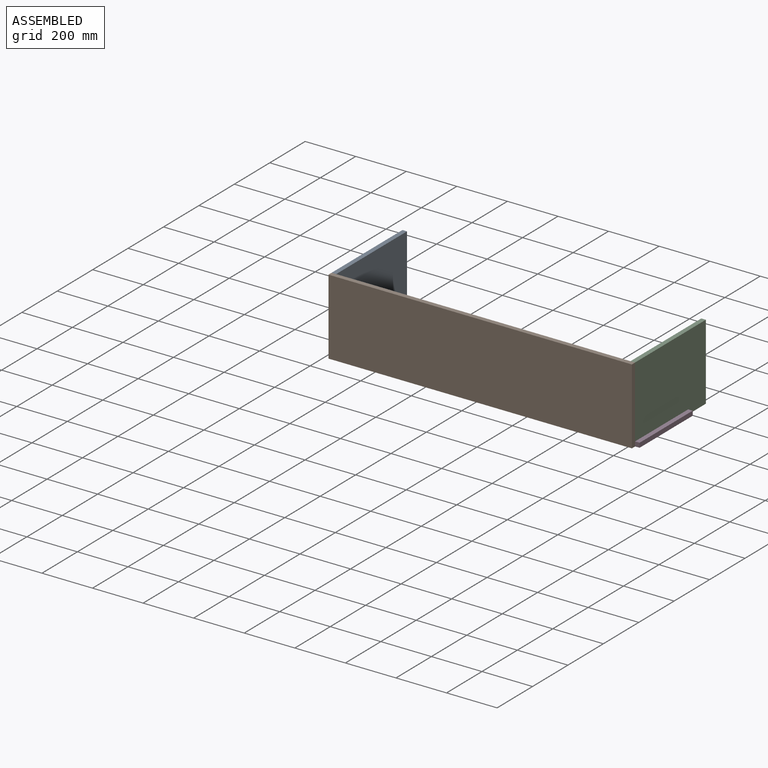
[diagram: assembled view]
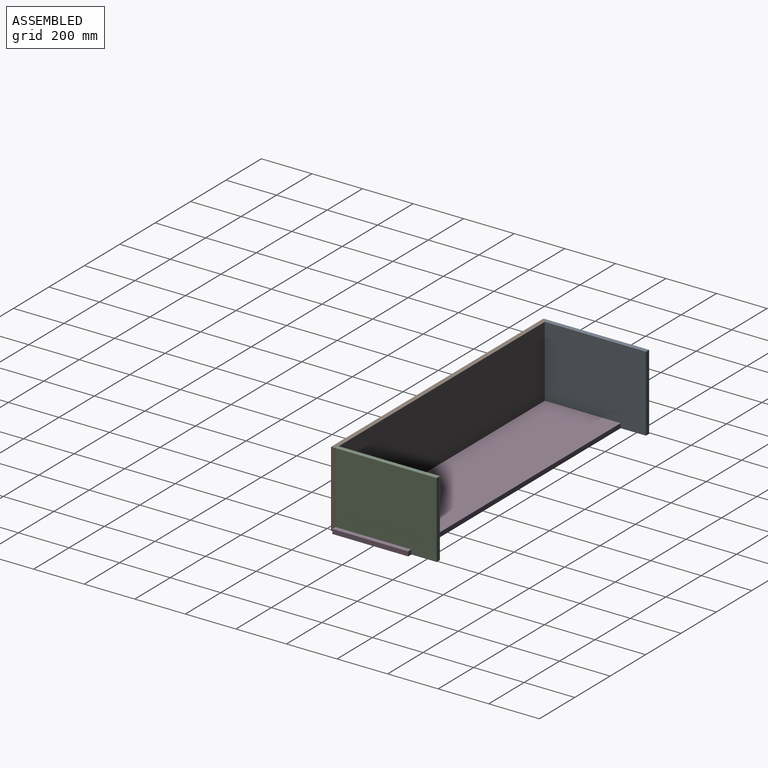
[diagram: assembled view, second angle]
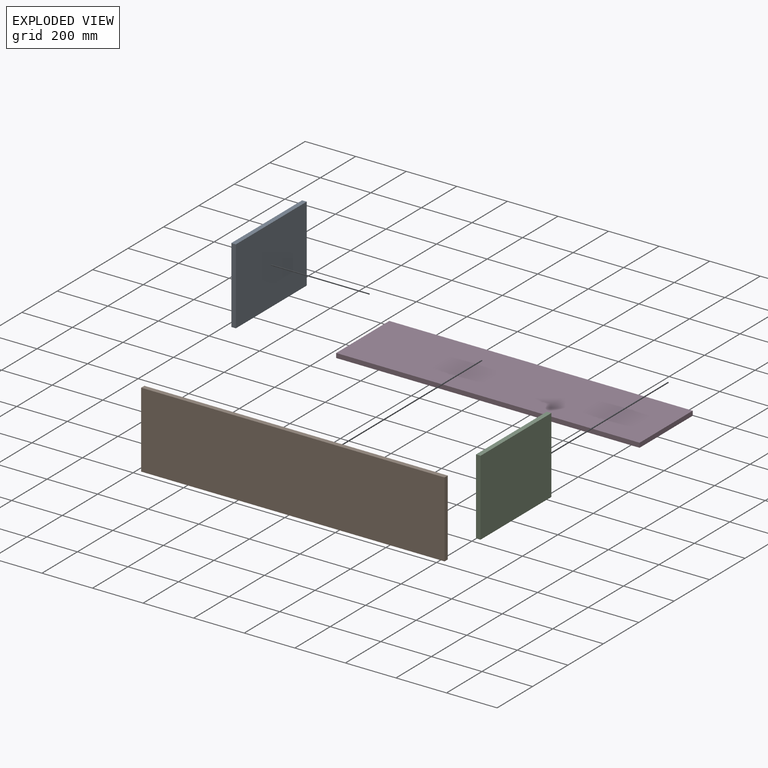
[diagram: exploded view]
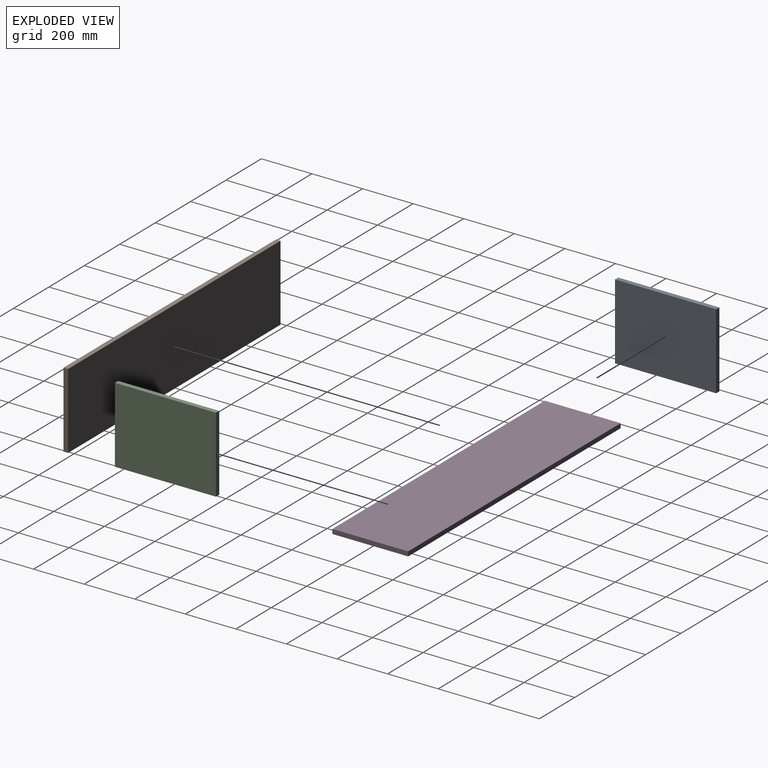
[diagram: exploded view, second angle]
ASSEMBLY  parts=4 mates=3
PART A: 6 faces, bbox 400x18x300 mm
  f0: plane 300x18mm, normal (-1,0,0), area 5400mm2, adj f1,f3,f4,f5
  f1: plane 400x18mm, normal (0,0,-1), area 7200mm2, adj f0,f2,f4,f5
  f2: plane 300x18mm, normal (1,0,0), area 5400mm2, adj f1,f3,f4,f5
  f3: plane 400x18mm, normal (0,0,1), area 7200mm2, adj f0,f2,f4,f5
  f4: plane 400x300mm, normal (0,-1,0), area 120000mm2, adj f0,f1,f2,f3
  f5: plane 400x300mm, normal (0,1,0), area 120000mm2, adj f0,f1,f2,f3
PART B: 6 faces, bbox 1200x18x300 mm
  f0: plane 300x18mm, normal (-1,0,0), area 5400mm2, adj f1,f3,f4,f5
  f1: plane 1200x18mm, normal (0,0,-1), area 21600mm2, adj f0,f2,f4,f5
  f2: plane 300x18mm, normal (1,0,0), area 5400mm2, adj f1,f3,f4,f5
  f3: plane 1200x18mm, normal (0,0,1), area 21600mm2, adj f0,f2,f4,f5
  f4: plane 1200x300mm, normal (0,-1,0), area 360000mm2, adj f0,f1,f2,f3
  f5: plane 1200x300mm, normal (0,1,0), area 360000mm2, adj f0,f1,f2,f3
PART C: same geometry as A
PART D: same geometry as B
PLACE A rot(axis=(0,0,-1),90deg) t=(1059.22,104.8,-887.88)mm
PLACE B t=(1647.31,-137.14,-712.41)mm
PLACE C rot(axis=(0,0,-1),90deg) t=(2241.22,104.8,-887.88)mm
PLACE D rot(axis=(-1,0,0),90deg) t=(1665.31,63.49,-913.04)mm
MATE fastened A.f2 <-> B.f5  axis (0,-1,0) through (1041.22,-137.14,-913.04)mm
MATE fastened C.f2 <-> B.f5  axis (0,-1,0) through (2241.22,-137.14,-613.04)mm
MATE fastened D.f0 <-> A.f5  axis (1,0,0) through (1059.22,-137.14,-913.04)mm
